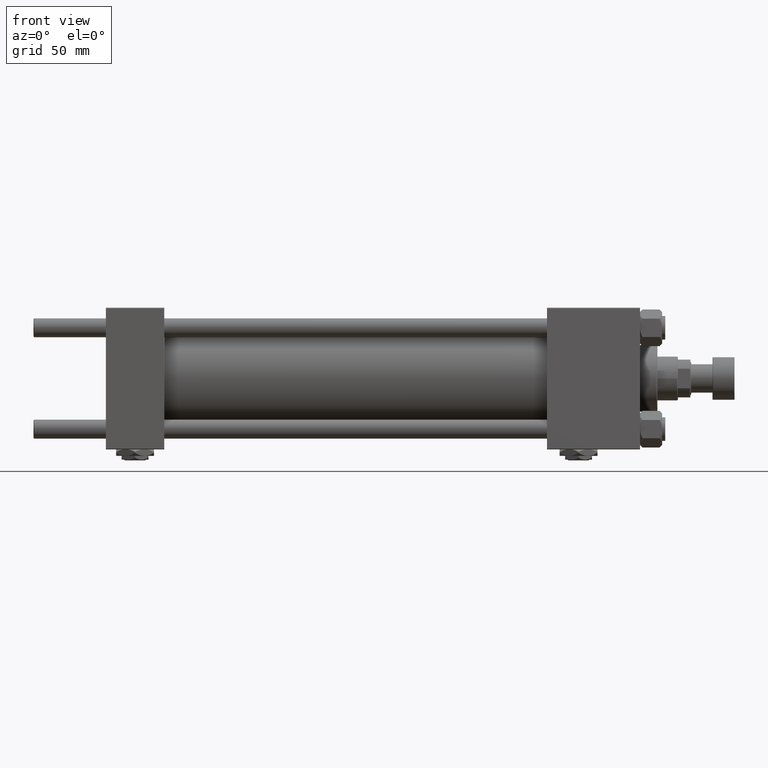
[diagram: clean part render]
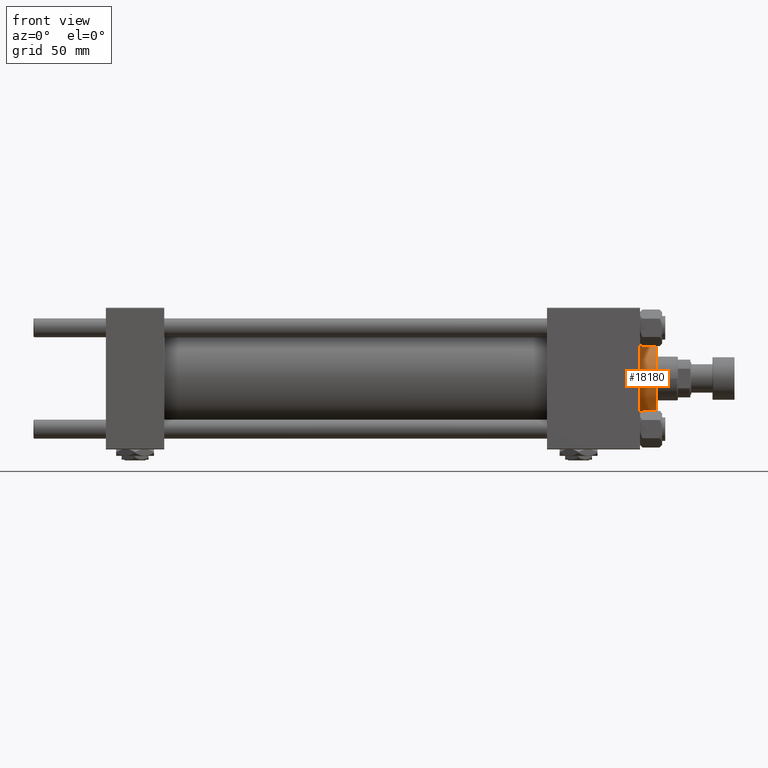
[diagram: same view with one face highlighted and labeled with its STEP entity id]
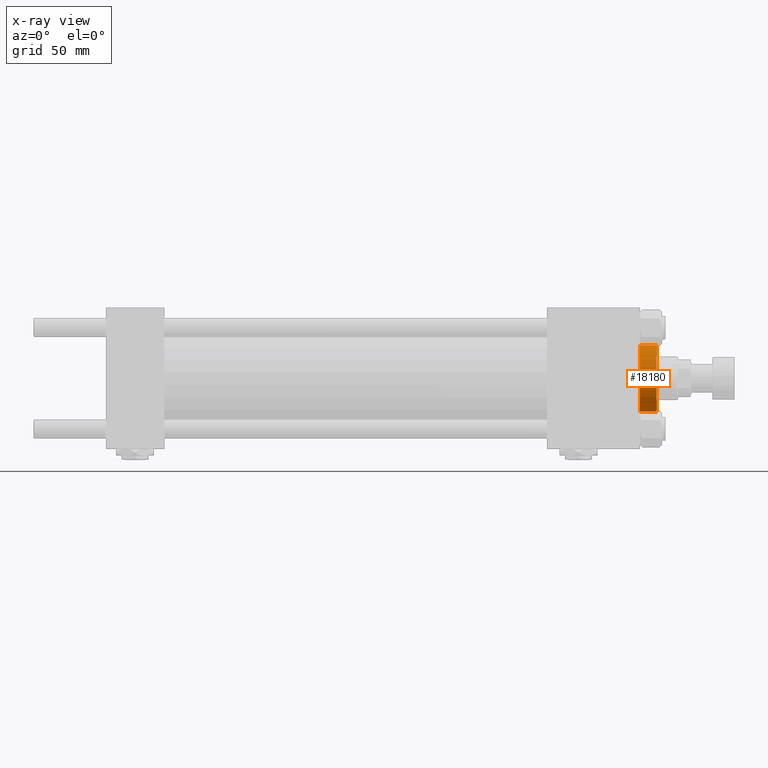
[diagram: x-ray of the same camera — body ghosted, the highlighted face saturated]
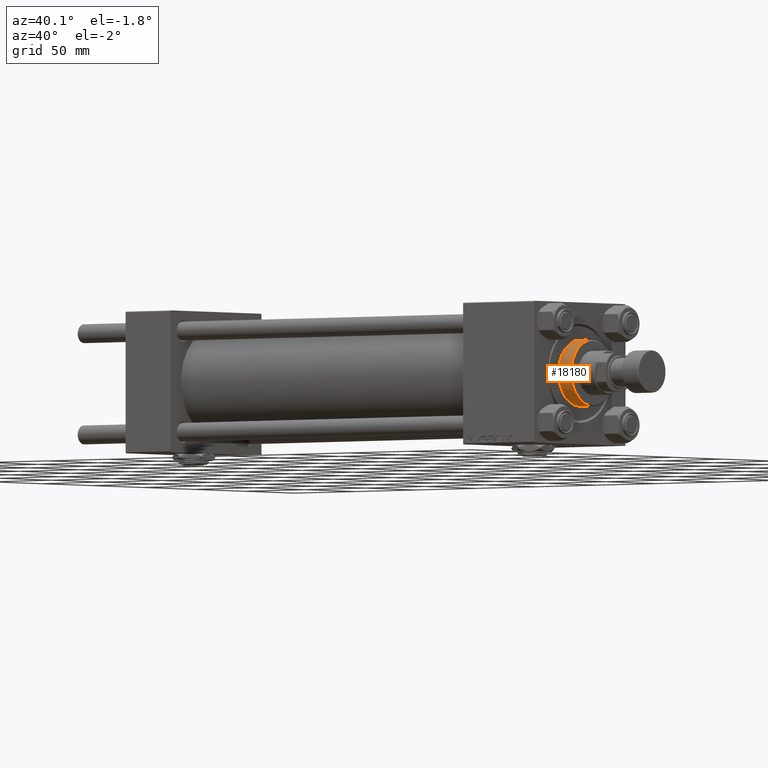
[diagram: same view with one face highlighted and labeled with its STEP entity id]
A machine part, front view. The second image highlights one B-rep face of the part: STEP entity #18180.
The next image is the same camera in x-ray: the body ghosted, the highlighted face saturated — about 0% of this face is hidden behind the body in this view.
A second angle (auxiliary view) of the same face is appended — the face is thin or edge-on in the first view.
In plain terms, the highlighted cylindrical surface (edge-blend (fillet) strip) has radius 21 mm, axis along (-1, -0, 0).
Its self-contained STEP definition (entity closure, byte-faithful):
#27 = DIRECTION ( 'NONE',  ( -1.000000000000000000, 0.000000000000000000, 0.000000000000000000 ) ) ;
#635 = CARTESIAN_POINT ( 'NONE',  ( -21.00000000000000000, 0.000000000000000000, 39.19999999999999574 ) ) ;
#1400 = EDGE_CURVE ( 'NONE', #8056, #42538, #2855, .T. ) ;
#1688 = AXIS2_PLACEMENT_3D ( 'NONE', #52290, #43841, #31928 ) ;
#2855 = LINE ( 'NONE', #48060, #12873 ) ;
#3735 = CARTESIAN_POINT ( 'NONE',  ( -21.00000000000000000, 0.000000000000000000, 28.69999999999999929 ) ) ;
#4885 = EDGE_LOOP ( 'NONE', ( #37935, #49429, #25696, #46760 ) ) ;
#4967 = VERTEX_POINT ( 'NONE', #635 ) ;
#7076 = DIRECTION ( 'NONE',  ( -0.000000000000000000, -0.000000000000000000, -1.000000000000000000 ) ) ;
#7423 = AXIS2_PLACEMENT_3D ( 'NONE', #32286, #52130, #27 ) ;
#7510 = CARTESIAN_POINT ( 'NONE',  ( -21.00000000000000000, 0.000000000000000000, 39.69999999999999574 ) ) ;
#8056 = VERTEX_POINT ( 'NONE', #12293 ) ;
#12293 = CARTESIAN_POINT ( 'NONE',  ( 21.00000000000000000, 2.571758278209441661E-15, 39.19999999999999574 ) ) ;
#12841 = CARTESIAN_POINT ( 'NONE',  ( 21.00000000000000000, 2.571758278209441661E-15, 28.69999999999999929 ) ) ;
#12873 = VECTOR ( 'NONE', #7076, 1000.000000000000000 ) ;
#18180 = ADVANCED_FACE ( 'NONE', ( #47904 ), #44456, .T. ) ;
#18272 = VERTEX_POINT ( 'NONE', #3735 ) ;
#19495 = VECTOR ( 'NONE', #47972, 1000.000000000000000 ) ;
#23761 = EDGE_CURVE ( 'NONE', #18272, #42538, #25332, .T. ) ;
#24131 = DIRECTION ( 'NONE',  ( 0.000000000000000000, 0.000000000000000000, -1.000000000000000000 ) ) ;
#24393 = CARTESIAN_POINT ( 'NONE',  ( 0.000000000000000000, 0.000000000000000000, 39.19999999999999574 ) ) ;
#24648 = AXIS2_PLACEMENT_3D ( 'NONE', #24393, #24131, #24656 ) ;
#24656 = DIRECTION ( 'NONE',  ( 1.000000000000000000, 0.000000000000000000, 0.000000000000000000 ) ) ;
#25332 = CIRCLE ( 'NONE', #1688, 21.00000000000000000 ) ;
#25696 = ORIENTED_EDGE ( 'NONE', *, *, #43780, .T. ) ;
#31928 = DIRECTION ( 'NONE',  ( 1.000000000000000000, 0.000000000000000000, 0.000000000000000000 ) ) ;
#32286 = CARTESIAN_POINT ( 'NONE',  ( 0.000000000000000000, 0.000000000000000000, 39.69999999999999574 ) ) ;
#35796 = LINE ( 'NONE', #7510, #19495 ) ;
#37935 = ORIENTED_EDGE ( 'NONE', *, *, #1400, .F. ) ;
#42538 = VERTEX_POINT ( 'NONE', #12841 ) ;
#43780 = EDGE_CURVE ( 'NONE', #4967, #18272, #35796, .T. ) ;
#43841 = DIRECTION ( 'NONE',  ( 0.000000000000000000, 0.000000000000000000, 1.000000000000000000 ) ) ;
#44456 = CYLINDRICAL_SURFACE ( 'NONE', #7423, 21.00000000000000000 ) ;
#45384 = EDGE_CURVE ( 'NONE', #8056, #4967, #47454, .T. ) ;
#46760 = ORIENTED_EDGE ( 'NONE', *, *, #23761, .T. ) ;
#47454 = CIRCLE ( 'NONE', #24648, 21.00000000000000000 ) ;
#47904 = FACE_OUTER_BOUND ( 'NONE', #4885, .T. ) ;
#47972 = DIRECTION ( 'NONE',  ( -0.000000000000000000, -0.000000000000000000, -1.000000000000000000 ) ) ;
#48060 = CARTESIAN_POINT ( 'NONE',  ( 21.00000000000000000, 2.571758278209441661E-15, 39.69999999999999574 ) ) ;
#49429 = ORIENTED_EDGE ( 'NONE', *, *, #45384, .T. ) ;
#52130 = DIRECTION ( 'NONE',  ( -0.000000000000000000, -0.000000000000000000, -1.000000000000000000 ) ) ;
#52290 = CARTESIAN_POINT ( 'NONE',  ( 0.000000000000000000, 0.000000000000000000, 28.69999999999999929 ) ) ;